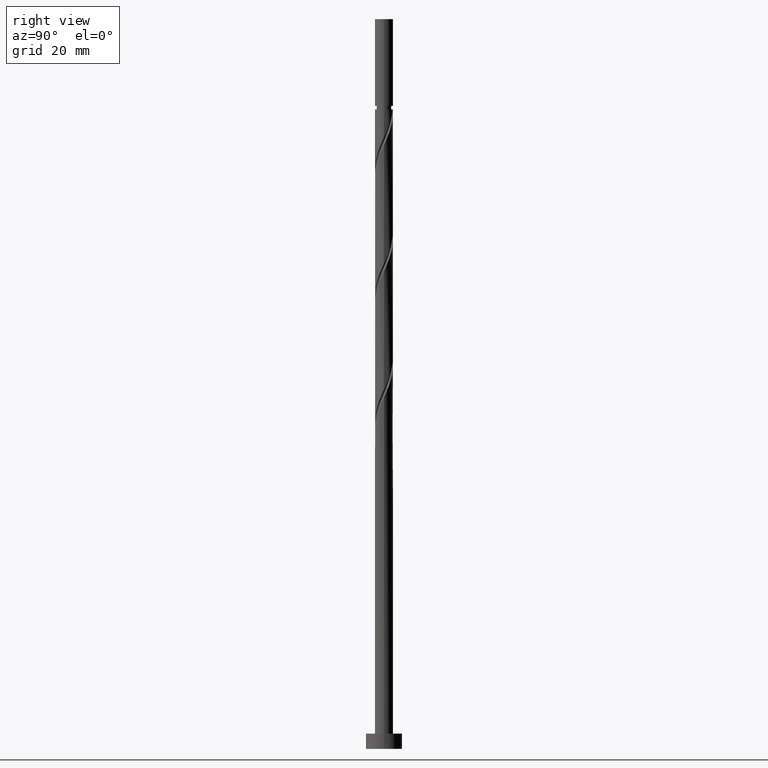
[diagram: clean part render]
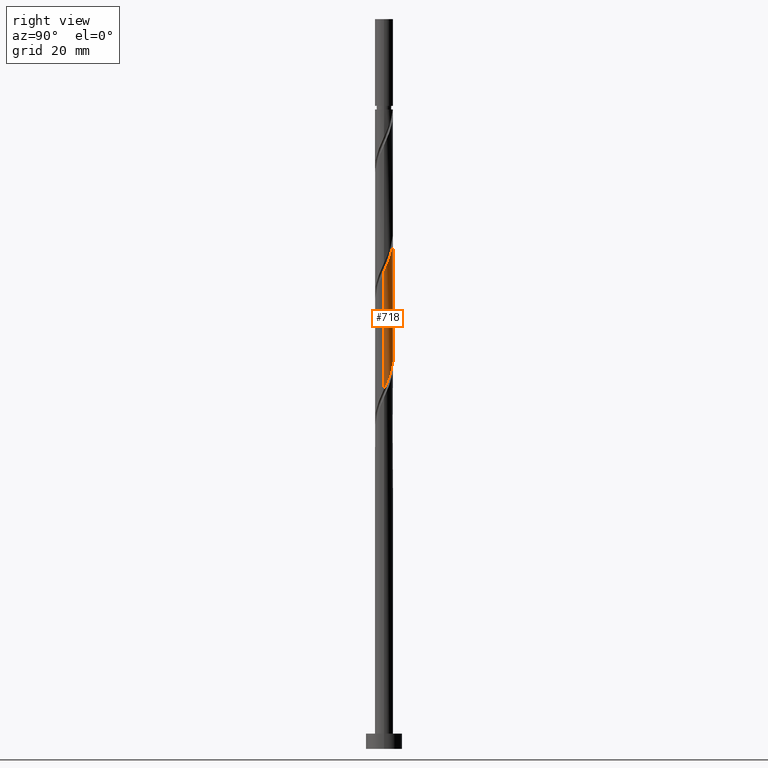
[diagram: same view with one face highlighted and labeled with its STEP entity id]
A machine part, right view. The second image highlights one B-rep face of the part: STEP entity #718.
In plain terms, the highlighted cylindrical surface (edge-blend (fillet) strip) has radius 3 mm, axis along (-0, -0, -1).
Its self-contained STEP definition (entity closure, byte-faithful):
#2 = CARTESIAN_POINT ( 'NONE',  ( -0.5969924622639729561, 2.940000000000004832, 169.5083818922013563 ) ) ;
#37 =( BOUNDED_CURVE ( )  B_SPLINE_CURVE ( 2, ( #1364, #1075, #1617, #1498, #87, #1642, #506, #219, #797, #751, #1177, #773, #1480, #66, #354, #1359, #929, #1488, #229, #913, #1355, #814, #673, #1571, #874, #1276, #308, #1155, #1502 ),
 .UNSPECIFIED., .F., .T. ) 
 B_SPLINE_CURVE_WITH_KNOTS ( ( 3, 2, 2, 2, 2, 2, 2, 2, 2, 2, 2, 2, 2, 2, 3 ),
 ( 0.6795271625973834384, 0.6826923076923077094, 0.6923076923076922906, 0.7019230769230768718, 0.7115384615384615641, 0.7211538461538461453, 0.7307692307692307265, 0.7403846153846154188, 0.7500000000000000000, 0.7596153846153845812, 0.7692307692307692735, 0.7788461538461538547, 0.7884615384615384359, 0.7980769230769231282, 0.8045271625973834384 ),
 .UNSPECIFIED. ) 
 CURVE ( )  GEOMETRIC_REPRESENTATION_ITEM ( )  RATIONAL_B_SPLINE_CURVE ( ( 0.9061636035682816281, 0.9069090390690703885, 0.9090909090909268242, 0.9024626128164302541, 0.9090909090909268242, 0.9024626128164302541, 0.9090909090909268242, 0.9024626128164302541, 0.9090909090909268242, 0.9024626128164302541, 0.9090909090909268242, 0.9024626128164302541, 0.9090909090909268242, 0.9024626128164302541, 0.9090909090909268242, 0.9024626128164302541, 0.9090909090909268242, 0.9024626128164302541, 0.9090909090909268242, 0.9024626128164302541, 0.9090909090909268242, 0.9024626128164302541, 0.9090909090909268242, 0.9024626128164302541, 0.9090909090909268242, 0.9024626128164302541, 0.9090909090909268242, 0.9046444828382866898, 0.9061636035682816281 ) ) 
 REPRESENTATION_ITEM ( '' )  );
#63 = CYLINDRICAL_SURFACE ( 'NONE', #590, 3.000000000000000444 ) ;
#66 = CARTESIAN_POINT ( 'NONE',  ( -0.4878980450008948977, 2.982389173091088530, 130.2455613793808027 ) ) ;
#75 = EDGE_CURVE ( 'NONE', #374, #546, #37, .T. ) ;
#87 = CARTESIAN_POINT ( 'NONE',  ( -2.846604600309526667, 0.9470175550097439388, 137.4570998409193123 ) ) ;
#134 = ORIENTED_EDGE ( 'NONE', *, *, #960, .F. ) ;
#146 = CARTESIAN_POINT ( 'NONE',  ( 0.8376755528275019458, 2.880676946169974606, 166.3032536870731235 ) ) ;
#156 = LINE ( 'NONE', #618, #919 ) ;
#178 = CARTESIAN_POINT ( 'NONE',  ( -1.894896698789863887, 2.325804484670908945, 172.7135100973295607 ) ) ;
#219 = CARTESIAN_POINT ( 'NONE',  ( -2.342886767063567355, 1.908814102736321683, 135.0532536870731519 ) ) ;
#225 = CARTESIAN_POINT ( 'NONE',  ( 0.000000000000000000, 0.000000000000000000, 241.0000000000000000 ) ) ;
#229 = CARTESIAN_POINT ( 'NONE',  ( 1.283232999305657929, 2.711699295551223354, 126.2391511229705401 ) ) ;
#239 = VERTEX_POINT ( 'NONE', #1560 ) ;
#288 = CARTESIAN_POINT ( 'NONE',  ( 2.990523579387033948, 0.2382618751084423503, 158.2904331742526551 ) ) ;
#308 = CARTESIAN_POINT ( 'NONE',  ( 2.960644198141480388, 0.4843407189274799851, 119.8288947127141455 ) ) ;
#315 = CARTESIAN_POINT ( 'NONE',  ( 1.817997620638351242, 2.414036937049630183, 163.8994075332269631 ) ) ;
#326 = CARTESIAN_POINT ( 'NONE',  ( -2.177300491905832747, 2.095722369502527549, 173.5147921486116047 ) ) ;
#354 = CARTESIAN_POINT ( 'NONE',  ( -0.1239431067051839502, 2.997438590913959366, 129.4442793280987303 ) ) ;
#359 = FACE_OUTER_BOUND ( 'NONE', #1212, .T. ) ;
#374 = VERTEX_POINT ( 'NONE', #831 ) ;
#397 = CARTESIAN_POINT ( 'NONE',  ( -3.000000000000004441, -2.826672382791166394E-15, 178.5971266829761248 ) ) ;
#400 = VERTEX_POINT ( 'NONE', #397 ) ;
#425 = CARTESIAN_POINT ( 'NONE',  ( -0.2400118315905253874, 3.012488008736836864, 168.7070998409192555 ) ) ;
#452 = LINE ( 'NONE', #1438, #1387 ) ;
#459 = CARTESIAN_POINT ( 'NONE',  ( -2.615571287713478466, 1.513762372691146441, 175.1173562511757495 ) ) ;
#460 = EDGE_CURVE ( 'NONE', #239, #546, #156, .T. ) ;
#506 = CARTESIAN_POINT ( 'NONE',  ( -2.537251308848757603, 1.600736016882629453, 135.8545357383551675 ) ) ;
#546 = VERTEX_POINT ( 'NONE', #1451 ) ;
#549 =( BOUNDED_CURVE ( )  B_SPLINE_CURVE ( 2, ( #736, #596, #288, #896, #1448, #1017, #1577, #1699, #870, #315, #878, #1594, #146, #1421, #1726, #425, #2, #1306, #861, #1584, #178, #326, #578, #459, #887, #1708, #756, #1000, #1282 ),
 .UNSPECIFIED., .F., .T. ) 
 B_SPLINE_CURVE_WITH_KNOTS ( ( 3, 2, 2, 2, 2, 2, 2, 2, 2, 2, 2, 2, 2, 2, 3 ),
 ( 0.4295271625973832164, 0.4326923076923077094, 0.4423076923076922906, 0.4519230769230768718, 0.4615384615384615641, 0.4711538461538461453, 0.4807692307692307265, 0.4903846153846154188, 0.5000000000000000000, 0.5096153846153845812, 0.5192307692307691624, 0.5288461538461538547, 0.5384615384615384359, 0.5480769230769231282, 0.5545271625973834384 ),
 .UNSPECIFIED. ) 
 CURVE ( )  GEOMETRIC_REPRESENTATION_ITEM ( )  RATIONAL_B_SPLINE_CURVE ( ( 0.9061636035682882895, 0.9069090390690768277, 0.9090909090909334855, 0.9024626128164370265, 0.9090909090909334855, 0.9024626128164370265, 0.9090909090909334855, 0.9024626128164370265, 0.9090909090909334855, 0.9024626128164370265, 0.9090909090909334855, 0.9024626128164370265, 0.9090909090909334855, 0.9024626128164370265, 0.9090909090909334855, 0.9024626128164370265, 0.9090909090909334855, 0.9024626128164370265, 0.9090909090909334855, 0.9024626128164370265, 0.9090909090909334855, 0.9024626128164370265, 0.9090909090909334855, 0.9024626128164370265, 0.9090909090909334855, 0.9024626128164370265, 0.9090909090909334855, 0.9046444828382934622, 0.9061636035682882895 ) ) 
 REPRESENTATION_ITEM ( '' )  );
#578 = CARTESIAN_POINT ( 'NONE',  ( -2.396435889809655162, 1.804742371096837328, 174.3160741998936203 ) ) ;
#583 = ORIENTED_EDGE ( 'NONE', *, *, #75, .F. ) ;
#590 = AXIS2_PLACEMENT_3D ( 'NONE', #225, #636, #1199 ) ;
#596 = CARTESIAN_POINT ( 'NONE',  ( 3.000000000000005329, 0.1193193910103004934, 158.0279642652756991 ) ) ;
#618 = CARTESIAN_POINT ( 'NONE',  ( 3.000000000000000444, 3.673940397442060361E-16, 241.0000000000000000 ) ) ;
#636 = DIRECTION ( 'NONE',  ( -0.000000000000000000, -0.000000000000000000, -1.000000000000000000 ) ) ;
#673 = CARTESIAN_POINT ( 'NONE',  ( 2.396435889809652053, 1.804742371096831999, 123.0340229178423783 ) ) ;
#718 = ADVANCED_FACE ( 'NONE', ( #359 ), #63, .T. ) ;
#736 = CARTESIAN_POINT ( 'NONE',  ( 3.000000000000004441, 1.031959758796775264E-15, 157.7637933496428104 ) ) ;
#751 = CARTESIAN_POINT ( 'NONE',  ( -1.817997620638345913, 2.414036937049628850, 133.4506895845090355 ) ) ;
#756 = CARTESIAN_POINT ( 'NONE',  ( -2.960644198141486605, 0.4843407189274820390, 177.5212024050218815 ) ) ;
#773 = CARTESIAN_POINT ( 'NONE',  ( -1.187453060654100723, 2.778964719248850468, 131.8481254819449191 ) ) ;
#797 = CARTESIAN_POINT ( 'NONE',  ( -2.080442193850956301, 2.161425519892975267, 134.2519716357910511 ) ) ;
#814 = CARTESIAN_POINT ( 'NONE',  ( 2.177300491905830082, 2.095722369502523996, 123.8353049691243939 ) ) ;
#831 = CARTESIAN_POINT ( 'NONE',  ( -2.999999999999999556, -5.758036335315384076E-15, 139.5863037680931882 ) ) ;
#838 = ORIENTED_EDGE ( 'NONE', *, *, #1035, .F. ) ;
#861 = CARTESIAN_POINT ( 'NONE',  ( -1.283232999305657263, 2.711699295551230016, 171.1109459947655012 ) ) ;
#870 = CARTESIAN_POINT ( 'NONE',  ( 2.080442193850961186, 2.161425519892977931, 163.0981254819449759 ) ) ;
#874 = CARTESIAN_POINT ( 'NONE',  ( 2.758702937603741745, 1.178795190886219535, 121.4314588152782477 ) ) ;
#878 = CARTESIAN_POINT ( 'NONE',  ( 1.502725340646227536, 2.596500828149244544, 164.7006895845090355 ) ) ;
#887 = CARTESIAN_POINT ( 'NONE',  ( -2.758702937603747074, 1.178795190886223754, 175.9186383024577367 ) ) ;
#896 = CARTESIAN_POINT ( 'NONE',  ( 2.961593349985112145, 0.6013771789905504317, 159.0917152255346707 ) ) ;
#913 = CARTESIAN_POINT ( 'NONE',  ( 1.612492905673893251, 2.555886599839282347, 125.4378690716885245 ) ) ;
#919 = VECTOR ( 'NONE', #1019, 1000.000000000000000 ) ;
#929 = CARTESIAN_POINT ( 'NONE',  ( 0.5969924622639737333, 2.939999999999999503, 127.8417152255346423 ) ) ;
#960 = EDGE_CURVE ( 'NONE', #400, #374, #452, .T. ) ;
#1000 = CARTESIAN_POINT ( 'NONE',  ( -3.000000000000005773, 0.2437693156111324644, 178.0574259456278128 ) ) ;
#1017 = CARTESIAN_POINT ( 'NONE',  ( 2.731615850633954068, 1.292657931028937224, 160.6942793280987587 ) ) ;
#1019 = DIRECTION ( 'NONE',  ( -0.000000000000000000, -0.000000000000000000, -1.000000000000000000 ) ) ;
#1035 = EDGE_CURVE ( 'NONE', #239, #400, #549, .T. ) ;
#1075 = CARTESIAN_POINT ( 'NONE',  ( -2.999999999999998668, 0.1193193910103104854, 139.3221328524602143 ) ) ;
#1155 = CARTESIAN_POINT ( 'NONE',  ( 3.000000000000000888, 0.2437693156111304382, 119.2926711721081858 ) ) ;
#1177 = CARTESIAN_POINT ( 'NONE',  ( -1.502725340646222874, 2.596500828149240547, 132.6494075332269631 ) ) ;
#1199 = DIRECTION ( 'NONE',  ( -1.000000000000000000, 0.000000000000000000, 0.000000000000000000 ) ) ;
#1212 = EDGE_LOOP ( 'NONE', ( #838, #1236, #583, #134 ) ) ;
#1236 = ORIENTED_EDGE ( 'NONE', *, *, #460, .T. ) ;
#1276 = CARTESIAN_POINT ( 'NONE',  ( 2.901834587494009909, 0.8438280090812962930, 120.6301767639962179 ) ) ;
#1282 = CARTESIAN_POINT ( 'NONE',  ( -3.000000000000004441, -2.826672382791166394E-15, 178.5971266829761248 ) ) ;
#1306 = CARTESIAN_POINT ( 'NONE',  ( -0.9539730929374202750, 2.867511991263172355, 170.3096639434834003 ) ) ;
#1315 = DIRECTION ( 'NONE',  ( -0.000000000000000000, -0.000000000000000000, -1.000000000000000000 ) ) ;
#1355 = CARTESIAN_POINT ( 'NONE',  ( 1.894896698789862555, 2.325804484670902283, 124.6365870204064663 ) ) ;
#1359 = CARTESIAN_POINT ( 'NONE',  ( 0.2400118315905271915, 3.012488008736831979, 128.6429972768167147 ) ) ;
#1364 = CARTESIAN_POINT ( 'NONE',  ( -2.999999999999999556, -5.758036335315384076E-15, 139.5863037680931882 ) ) ;
#1387 = VECTOR ( 'NONE', #1315, 1000.000000000000000 ) ;
#1421 = CARTESIAN_POINT ( 'NONE',  ( 0.4878980450008975067, 2.982389173091093859, 167.1045357383551675 ) ) ;
#1438 = CARTESIAN_POINT ( 'NONE',  ( -3.000000000000000444, 0.000000000000000000, 241.0000000000000000 ) ) ;
#1448 = CARTESIAN_POINT ( 'NONE',  ( 2.846604600309533772, 0.9470175550097428285, 159.8929972768167147 ) ) ;
#1451 = CARTESIAN_POINT ( 'NONE',  ( 2.999999999999999556, 4.531649375585873091E-15, 118.7529704347598596 ) ) ;
#1480 = CARTESIAN_POINT ( 'NONE',  ( -0.8376755528274979490, 2.880676946169970165, 131.0468434306628751 ) ) ;
#1488 = CARTESIAN_POINT ( 'NONE',  ( 0.9539730929374208301, 2.867511991263166582, 127.0404331742525983 ) ) ;
#1498 = CARTESIAN_POINT ( 'NONE',  ( -2.961593349985107260, 0.6013771789905504317, 138.2583818922013279 ) ) ;
#1502 = CARTESIAN_POINT ( 'NONE',  ( 2.999999999999999556, 4.531649375585872302E-15, 118.7529704347598596 ) ) ;
#1560 = CARTESIAN_POINT ( 'NONE',  ( 3.000000000000004885, 1.031959758796775264E-15, 157.7637933496428104 ) ) ;
#1571 = CARTESIAN_POINT ( 'NONE',  ( 2.615571287713475357, 1.513762372691140667, 122.2327408665603201 ) ) ;
#1577 = CARTESIAN_POINT ( 'NONE',  ( 2.537251308848762932, 1.600736016882631230, 161.4955613793808311 ) ) ;
#1584 = CARTESIAN_POINT ( 'NONE',  ( -1.612492905673894361, 2.555886599839288120, 171.9122280460474599 ) ) ;
#1594 = CARTESIAN_POINT ( 'NONE',  ( 1.187453060654103831, 2.778964719248856685, 165.5019716357911079 ) ) ;
#1617 = CARTESIAN_POINT ( 'NONE',  ( -2.990523579387028619, 0.2382618751084444042, 139.0596639434833435 ) ) ;
#1642 = CARTESIAN_POINT ( 'NONE',  ( -2.731615850633947851, 1.292657931028936558, 136.6558177896372683 ) ) ;
#1699 = CARTESIAN_POINT ( 'NONE',  ( 2.342886767063573128, 1.908814102736323237, 162.2968434306629035 ) ) ;
#1708 = CARTESIAN_POINT ( 'NONE',  ( -2.901834587494016127, 0.8438280090813001788, 176.7199203537398375 ) ) ;
#1726 = CARTESIAN_POINT ( 'NONE',  ( 0.1239431067051874336, 2.997438590913966028, 167.9058177896372968 ) ) ;